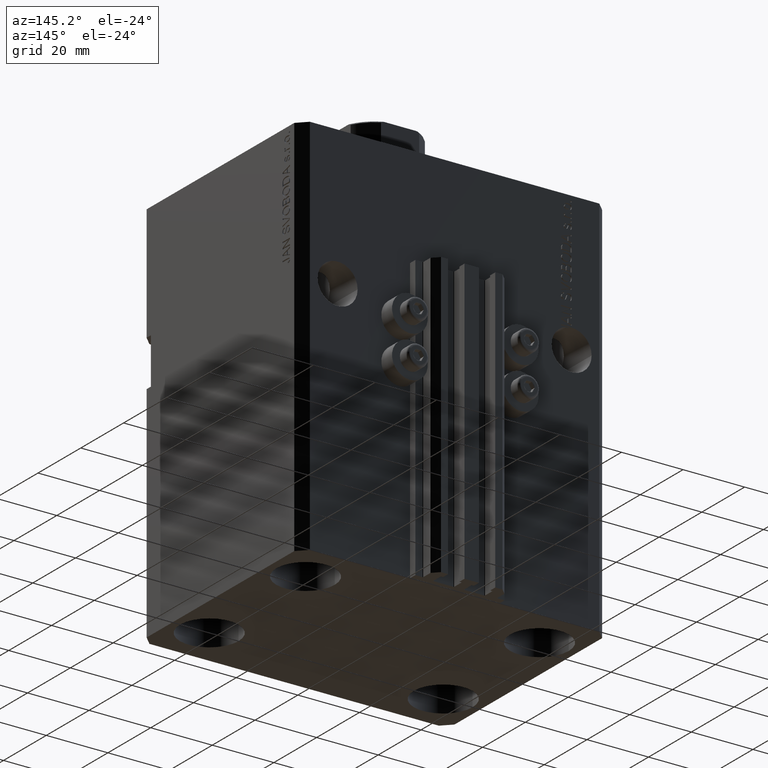
[diagram: clean part render]
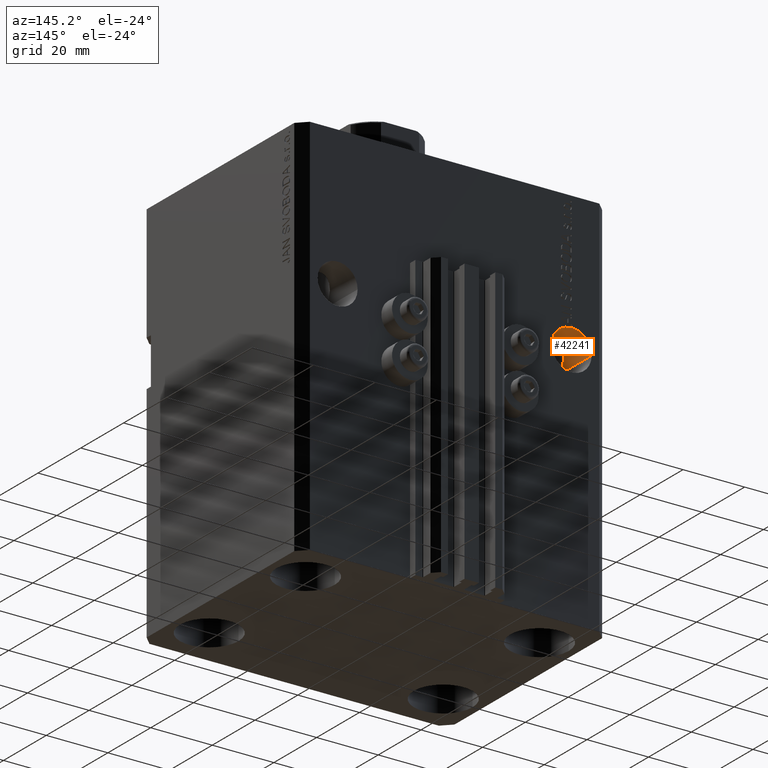
[diagram: same view with one face highlighted and labeled with its STEP entity id]
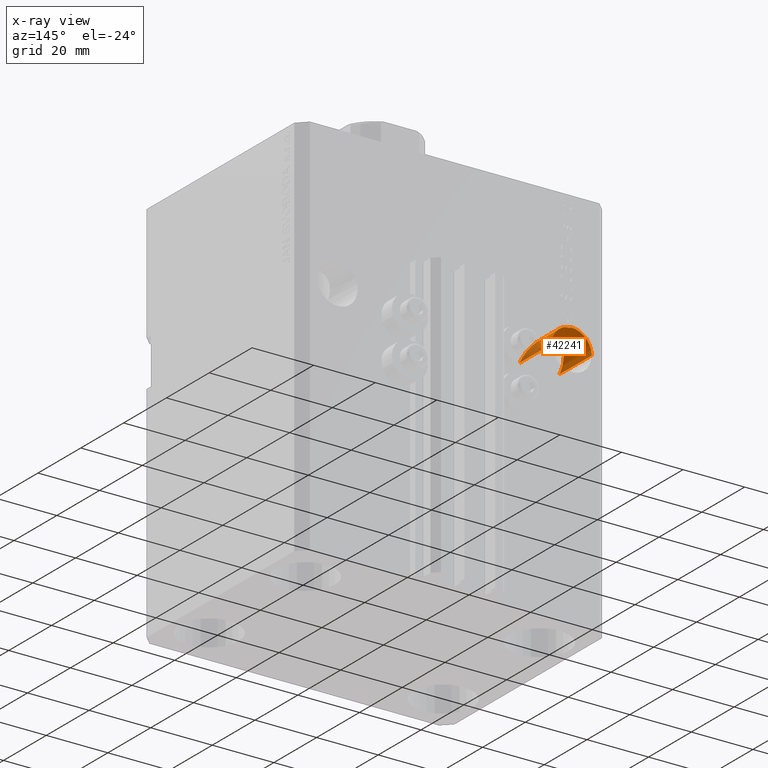
[diagram: x-ray of the same camera — body ghosted, the highlighted face saturated]
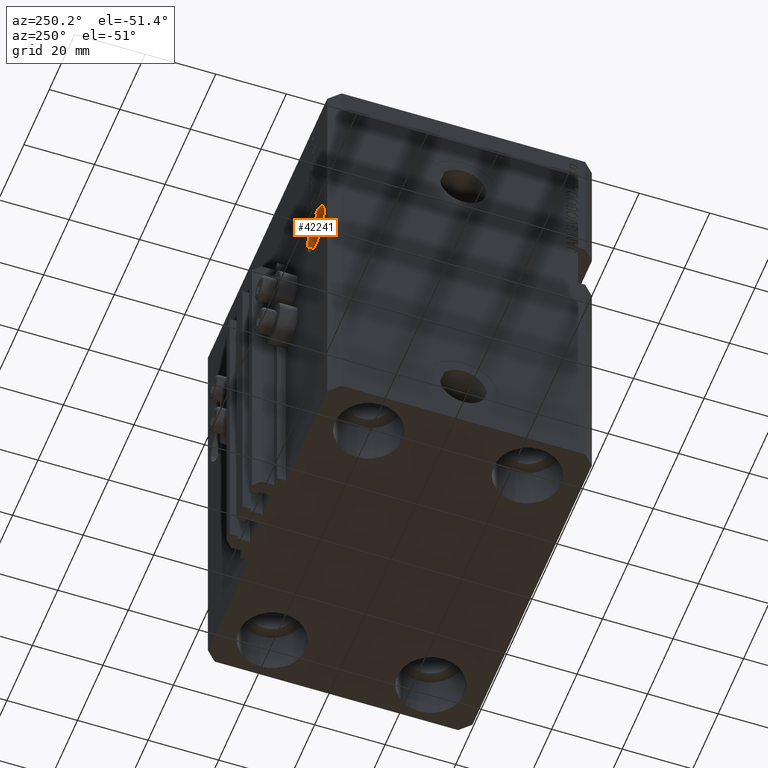
[diagram: same view with one face highlighted and labeled with its STEP entity id]
A machine part, auxiliary view. The second image highlights one B-rep face of the part: STEP entity #42241.
The next image is the same camera in x-ray: the body ghosted, the highlighted face saturated — about 9% of this face is hidden behind the body in this view.
A second angle (auxiliary view) of the same face is appended — the face is thin or edge-on in the first view.
In plain terms, the highlighted cylindrical surface (edge-blend (fillet) strip) has radius 6.5 mm, axis along (0, -1, 0).
Its self-contained STEP definition (entity closure, byte-faithful):
#12 = DIRECTION ( 'NONE',  ( 1.101411730780568590E-16, -1.000000000000000000, -0.000000000000000000 ) ) ;
#309 = AXIS2_PLACEMENT_3D ( 'NONE', #10334, #47427, #14436 ) ;
#1522 = LINE ( 'NONE', #23195, #2524 ) ;
#2524 = VECTOR ( 'NONE', #34062, 1000.000000000000000 ) ;
#3579 = FACE_OUTER_BOUND ( 'NONE', #32830, .T. ) ;
#5568 = CARTESIAN_POINT ( 'NONE',  ( -36.29621228963713264, 60.50000000000002132, -38.72727272727273373 ) ) ;
#6745 = CIRCLE ( 'NONE', #38311, 6.499999999999999112 ) ;
#6796 = CARTESIAN_POINT ( 'NONE',  ( -31.49999999999999289, 35.49999999999999289, -32.00000000000001421 ) ) ;
#8054 = CARTESIAN_POINT ( 'NONE',  ( -36.29621228963713264, 37.49999999999999289, -38.72727272727273373 ) ) ;
#9653 = EDGE_CURVE ( 'NONE', #20589, #38040, #33812, .T. ) ;
#10334 = CARTESIAN_POINT ( 'NONE',  ( -37.99999999999999289, 60.50000000000002132, -45.00000000000000711 ) ) ;
#11100 = LINE ( 'NONE', #41432, #20653 ) ;
#11148 = DIRECTION ( 'NONE',  ( -1.000000000000000000, 0.000000000000000000, 0.000000000000000000 ) ) ;
#12160 = CIRCLE ( 'NONE', #39049, 6.499999999999999112 ) ;
#12296 = VERTEX_POINT ( 'NONE', #47558 ) ;
#12932 = CARTESIAN_POINT ( 'NONE',  ( -36.29621228963712554, 36.99999999999998579, -38.72727272727273373 ) ) ;
#13463 = EDGE_CURVE ( 'NONE', #36911, #12296, #1522, .T. ) ;
#14025 = CARTESIAN_POINT ( 'NONE',  ( -31.49999999999999289, 22.50000000000000000, -45.00000000000001421 ) ) ;
#14436 = DIRECTION ( 'NONE',  ( 1.000000000000000000, 0.000000000000000000, 0.000000000000000000 ) ) ;
#14501 = VERTEX_POINT ( 'NONE', #19199 ) ;
#14758 = DIRECTION ( 'NONE',  ( 7.381802025433175941E-17, 1.000000000000000000, -0.000000000000000000 ) ) ;
#15079 = CARTESIAN_POINT ( 'NONE',  ( -31.49999999999999289, 22.50000000000000000, -45.00000000000001421 ) ) ;
#15114 = ORIENTED_EDGE ( 'NONE', *, *, #9653, .T. ) ;
#15716 = ORIENTED_EDGE ( 'NONE', *, *, #27666, .T. ) ;
#16309 = DIRECTION ( 'NONE',  ( 0.000000000000000000, 0.000000000000000000, 1.000000000000000000 ) ) ;
#16535 = DIRECTION ( 'NONE',  ( 0.000000000000000000, 1.000000000000000000, 0.000000000000000000 ) ) ;
#17971 = EDGE_CURVE ( 'NONE', #33130, #33793, #35444, .T. ) ;
#18122 = CARTESIAN_POINT ( 'NONE',  ( -37.99999999999999289, 37.50000000000000000, -45.00000000000000711 ) ) ;
#19199 = CARTESIAN_POINT ( 'NONE',  ( -44.49999999999999289, 37.50000000000000000, -45.00000000000000711 ) ) ;
#19286 = CARTESIAN_POINT ( 'NONE',  ( -37.68431254143588660, 37.50000000000000000, -38.50767056993363724 ) ) ;
#19690 = VECTOR ( 'NONE', #44217, 1000.000000000000000 ) ;
#19918 = CARTESIAN_POINT ( 'NONE',  ( -31.49999999999999289, 37.50000000000000000, -45.00000000000000711 ) ) ;
#20253 = DIRECTION ( 'NONE',  ( -1.101411730780568590E-16, 1.000000000000000000, 0.000000000000000000 ) ) ;
#20589 = VERTEX_POINT ( 'NONE', #8054 ) ;
#20653 = VECTOR ( 'NONE', #12, 1000.000000000000000 ) ;
#20985 = CARTESIAN_POINT ( 'NONE',  ( -44.50000000000000000, 35.49999999999999289, -32.00000000000001421 ) ) ;
#21156 = CYLINDRICAL_SURFACE ( 'NONE', #309, 6.499999999999999112 ) ;
#23195 = CARTESIAN_POINT ( 'NONE',  ( -37.68431254143588660, 36.99999999999999289, -38.50767056993363724 ) ) ;
#23307 = DIRECTION ( 'NONE',  ( -1.000000000000000000, 0.000000000000000000, 0.000000000000000000 ) ) ;
#23921 = EDGE_CURVE ( 'NONE', #14501, #36911, #6745, .T. ) ;
#24437 = ORIENTED_EDGE ( 'NONE', *, *, #23921, .T. ) ;
#24678 = ORIENTED_EDGE ( 'NONE', *, *, #13463, .T. ) ;
#25326 = AXIS2_PLACEMENT_3D ( 'NONE', #18122, #14758, #11148 ) ;
#25942 = ORIENTED_EDGE ( 'NONE', *, *, #40989, .T. ) ;
#26511 = EDGE_CURVE ( 'NONE', #38040, #33793, #11100, .T. ) ;
#27666 = EDGE_CURVE ( 'NONE', #12296, #27674, #12160, .T. ) ;
#27674 = VERTEX_POINT ( 'NONE', #12932 ) ;
#28026 = ORIENTED_EDGE ( 'NONE', *, *, #17971, .F. ) ;
#29516 = CARTESIAN_POINT ( 'NONE',  ( -44.49999999999999289, 60.50000000000002132, -45.00000000000000711 ) ) ;
#31456 = CARTESIAN_POINT ( 'NONE',  ( -37.99999999999999289, 36.99999999999998579, -45.00000000000000711 ) ) ;
#32562 = CARTESIAN_POINT ( 'NONE',  ( -44.49999999999999289, 22.50000000000000000, -45.00000000000001421 ) ) ;
#32830 = EDGE_LOOP ( 'NONE', ( #39426, #24437, #24678, #15716, #25942, #15114, #46836, #28026 ) ) ;
#33130 = VERTEX_POINT ( 'NONE', #43865 ) ;
#33226 = CARTESIAN_POINT ( 'NONE',  ( -37.99999999999999289, 37.50000000000000000, -45.00000000000000711 ) ) ;
#33466 = DIRECTION ( 'NONE',  ( 7.381802025433175941E-17, 1.000000000000000000, -0.000000000000000000 ) ) ;
#33793 = VERTEX_POINT ( 'NONE', #15079 ) ;
#33812 = CIRCLE ( 'NONE', #25326, 6.499999999999999112 ) ;
#34062 = DIRECTION ( 'NONE',  ( 2.352167425053553784E-16, -1.000000000000000000, 0.000000000000000000 ) ) ;
#35444 =( BOUNDED_CURVE ( )  B_SPLINE_CURVE ( 3, ( #32562, #20985, #6796, #14025 ),
 .UNSPECIFIED., .F., .T. ) 
 B_SPLINE_CURVE_WITH_KNOTS ( ( 4, 4 ),
 ( 4.712388980384689674, 7.853981633974482790 ),
 .UNSPECIFIED. ) 
 CURVE ( )  GEOMETRIC_REPRESENTATION_ITEM ( )  RATIONAL_B_SPLINE_CURVE ( ( 1.000000000000000000, 0.3333333333333333703, 0.3333333333333333703, 1.000000000000000000 ) ) 
 REPRESENTATION_ITEM ( '' )  );
#36911 = VERTEX_POINT ( 'NONE', #19286 ) ;
#38040 = VERTEX_POINT ( 'NONE', #19918 ) ;
#38311 = AXIS2_PLACEMENT_3D ( 'NONE', #33226, #33466, #23307 ) ;
#38577 = LINE ( 'NONE', #5568, #46431 ) ;
#39049 = AXIS2_PLACEMENT_3D ( 'NONE', #31456, #16535, #16309 ) ;
#39426 = ORIENTED_EDGE ( 'NONE', *, *, #47338, .F. ) ;
#40989 = EDGE_CURVE ( 'NONE', #27674, #20589, #38577, .T. ) ;
#41432 = CARTESIAN_POINT ( 'NONE',  ( -31.49999999999999289, 60.50000000000002132, -45.00000000000000711 ) ) ;
#42241 = ADVANCED_FACE ( 'NONE', ( #3579 ), #21156, .F. ) ;
#43865 = CARTESIAN_POINT ( 'NONE',  ( -44.49999999999999289, 22.50000000000000000, -45.00000000000001421 ) ) ;
#44217 = DIRECTION ( 'NONE',  ( 1.101411730780568590E-16, -1.000000000000000000, -0.000000000000000000 ) ) ;
#46431 = VECTOR ( 'NONE', #20253, 1000.000000000000000 ) ;
#46836 = ORIENTED_EDGE ( 'NONE', *, *, #26511, .T. ) ;
#47338 = EDGE_CURVE ( 'NONE', #14501, #33130, #47348, .T. ) ;
#47348 = LINE ( 'NONE', #29516, #19690 ) ;
#47427 = DIRECTION ( 'NONE',  ( 1.101411730780568590E-16, -1.000000000000000000, -0.000000000000000000 ) ) ;
#47558 = CARTESIAN_POINT ( 'NONE',  ( -37.68431254143588660, 36.99999999999999289, -38.50767056993363724 ) ) ;